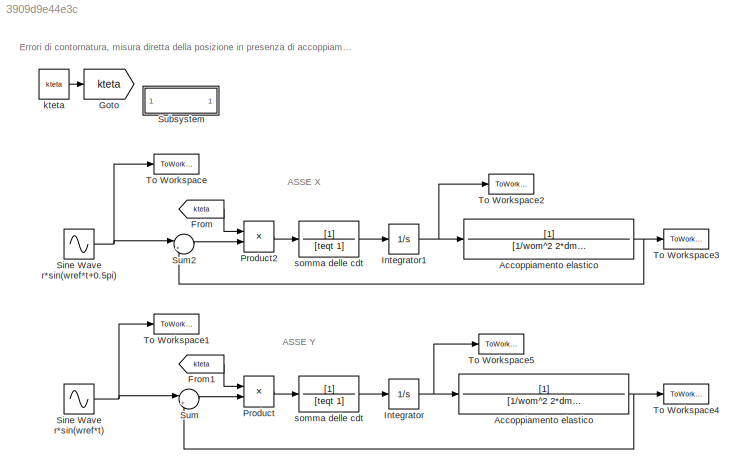
MODEL slx_3909d9e44e3c
KIND model
CONFIG AbsTol = auto
CONFIG EnableMultiTasking = on
CONFIG FixedStep = fixed_step_size
CONFIG MaxStep = auto
CONFIG MinStep = auto
CONFIG RelTol = 1e-3
CONFIG SampleTimeConstraint = Unconstrained
CONFIG Solver = ode4
CONFIG SolverName = ode4
CONFIG StartTime = 0.0
CONFIG StopTime = 2*pi/wref
BLOCK [TransferFcn] Accoppiamento elastico
  Denominator = [1/wom^2 2*dm/wom 1]
BLOCK [TransferFcn] Accoppiamento elastico 
  Denominator = [1/wom^2 2*dm/wom 1]
BLOCK [From] From
  CloseFcn = tagdialog Close
  GotoTag = kteta
BLOCK [From] From1
  CloseFcn = tagdialog Close
  GotoTag = kteta
BLOCK [Goto] Goto
  GotoTag = kteta
BLOCK [Integrator] Integrator
  Ports = [1, 1]
BLOCK [Integrator] Integrator1
  Ports = [1, 1]
BLOCK [Product] Product
  InputSameDT = off
  OutDataTypeStr = Inherit: Inherit via internal rule
  Ports = [2, 1]
  SaturateOnIntegerOverflow = off
BLOCK [Product] Product2
  InputSameDT = off
  OutDataTypeStr = Inherit: Inherit via internal rule
  Ports = [2, 1]
  SaturateOnIntegerOverflow = off
BLOCK [Sin] Sine Wave r*sin(wref*t)
  Amplitude = r
  Frequency = wref
  Ports = [0, 1]
  SampleTime = 0
BLOCK [Sin] Sine Wave r*sin(wref*t+0.5pi)
  Amplitude = r
  Frequency = wref
  Phase = pi/2
  Ports = [0, 1]
  SampleTime = 0
BLOCK [SubSystem] Subsystem
  OpenFcn = CAE_10d
  Ports = []
  RequestExecContextInheritance = off
BLOCK [Sum] Sum
  IconShape = round
  InputSameDT = off
  Inputs = |+-
  OutDataTypeStr = Inherit: Inherit via internal rule
  Ports = [2, 1]
  SaturateOnIntegerOverflow = off
BLOCK [Sum] Sum2
  IconShape = round
  InputSameDT = off
  Inputs = |+-
  OutDataTypeStr = Inherit: Inherit via internal rule
  Ports = [2, 1]
  SaturateOnIntegerOverflow = off
BLOCK [ToWorkspace] To Workspace
  MaxDataPoints = inf
  Ports = [1]
  SampleTime = -1
  VariableName = xref
BLOCK [ToWorkspace] To Workspace1
  MaxDataPoints = inf
  Ports = [1]
  SampleTime = -1
  VariableName = yref
BLOCK [ToWorkspace] To Workspace2
  MaxDataPoints = inf
  Ports = [1]
  SampleTime = -1
  VariableName = xm
BLOCK [ToWorkspace] To Workspace3
  MaxDataPoints = inf
  Ports = [1]
  SampleTime = -1
  VariableName = xl
BLOCK [ToWorkspace] To Workspace4
  MaxDataPoints = inf
  Ports = [1]
  SampleTime = -1
  VariableName = yl
BLOCK [ToWorkspace] To Workspace5
  MaxDataPoints = inf
  Ports = [1]
  SampleTime = -1
  VariableName = ym
BLOCK [Constant] kteta
  Value = kteta
BLOCK [TransferFcn] somma delle cdt
  Denominator = [teqt 1]
BLOCK [TransferFcn] somma delle cdt 
  Denominator = [teqt 1]
ANNOTATION (root): ASSE X
ANNOTATION (root): ASSE Y
ANNOTATION (root): Errori di contornatura, misura diretta della posizione in presenza di accoppiamento elastico
NET Accoppiamento elastico :1 -> Sum2:2, To Workspace3:1
NET Accoppiamento elastico:1 -> Sum:2, To Workspace4:1
LINE From1:1 -> Product:1
LINE From:1 -> Product2:1
NET Integrator1:1 -> Accoppiamento elastico :1, To Workspace2:1
NET Integrator:1 -> Accoppiamento elastico:1, To Workspace5:1
LINE Product2:1 -> somma delle cdt :1
LINE Product:1 -> somma delle cdt:1
NET Sine Wave r*sin(wref*t):1 -> Sum:1, To Workspace1:1
NET Sine Wave r*sin(wref*t+0.5pi):1 -> Sum2:1, To Workspace:1
LINE Sum2:1 -> Product2:2
LINE Sum:1 -> Product:2
LINE kteta:1 -> Goto:1
LINE somma delle cdt :1 -> Integrator1:1
LINE somma delle cdt:1 -> Integrator:1
note: NET lines group one-source signal fan-out (src -> all destinations, sorted); 1:1 wires keep LINE
